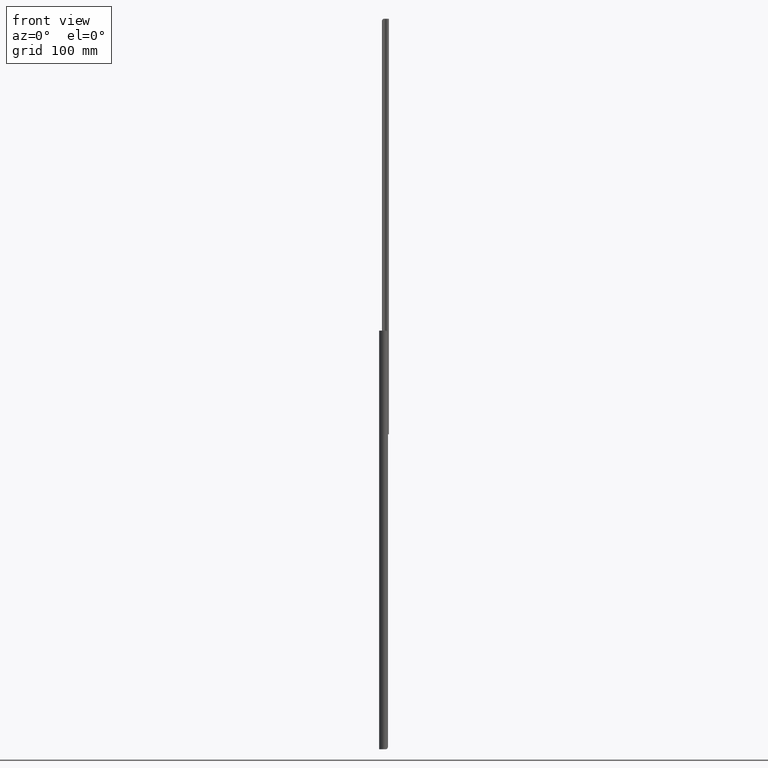
[diagram: clean part render]
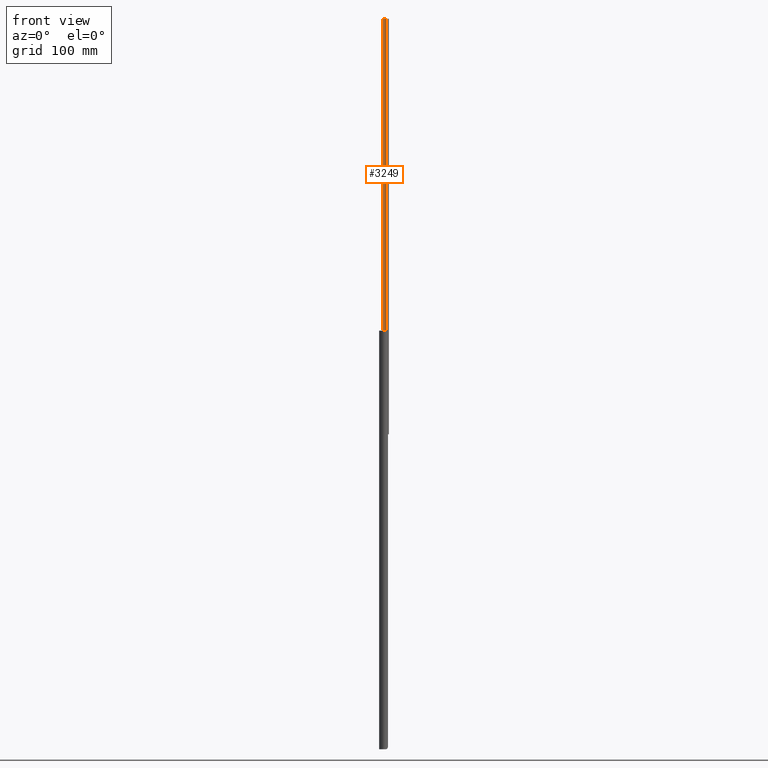
[diagram: same view with one face highlighted and labeled with its STEP entity id]
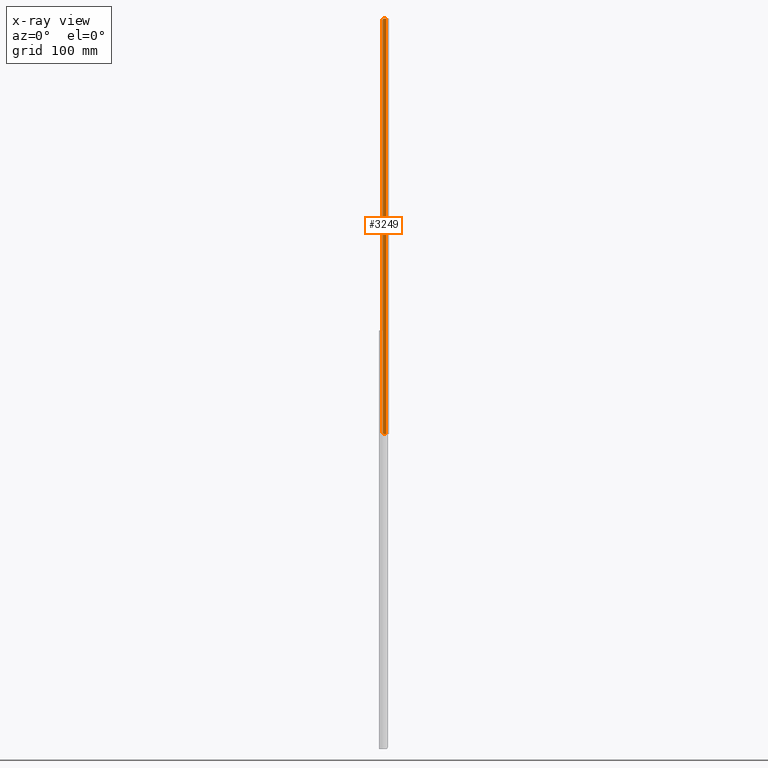
[diagram: x-ray of the same camera — body ghosted, the highlighted face saturated]
A machine part, front view. The second image highlights one B-rep face of the part: STEP entity #3249.
The next image is the same camera in x-ray: the body ghosted, the highlighted face saturated — about 0% of this face is hidden behind the body in this view.
In plain terms, the highlighted cylindrical surface (edge-blend (fillet) strip) has radius 2.38 mm, axis along (0, 0, 1).
Its self-contained STEP definition (entity closure, byte-faithful):
#3 = VERTEX_POINT ( 'NONE', #4042 ) ;
#158 = CARTESIAN_POINT ( 'NONE',  ( -6.038003439892630553, -12.09919011368893038, -0.9131091897948140357 ) ) ;
#368 = VECTOR ( 'NONE', #1017, 1000.000000000000000 ) ;
#426 = CARTESIAN_POINT ( 'NONE',  ( -5.294079358902234134, -11.52586267838252354, -403.2243635600140692 ) ) ;
#500 = CARTESIAN_POINT ( 'NONE',  ( -2.692068106155648177, -11.87076454733029429, 0.0000000000000000000 ) ) ;
#513 = CARTESIAN_POINT ( 'NONE',  ( -5.879618029457557071, -11.93037643469323505, -402.7434980978388239 ) ) ;
#592 = DIRECTION ( 'NONE',  ( -0.0000000000000000000, -0.0000000000000000000, -1.000000000000000000 ) ) ;
#738 = ORIENTED_EDGE ( 'NONE', *, *, #2088, .F. ) ;
#784 = CARTESIAN_POINT ( 'NONE',  ( -6.038003439892630553, -12.09919011368893038, -0.9131091897948140357 ) ) ;
#832 = VERTEX_POINT ( 'NONE', #784 ) ;
#886 = CARTESIAN_POINT ( 'NONE',  ( -5.690153087680392296, -11.75072672325786449, -0.4186476446296458764 ) ) ;
#920 = EDGE_CURVE ( 'NONE', #3878, #4159, #1647, .T. ) ;
#1017 = DIRECTION ( 'NONE',  ( 0.0000000000000000000, 0.0000000000000000000, 1.000000000000000000 ) ) ;
#1134 = CYLINDRICAL_SURFACE ( 'NONE', #4318, 2.379999999999999449 ) ;
#1159 = DIRECTION ( 'NONE',  ( 0.0000000000000000000, 0.0000000000000000000, 1.000000000000000000 ) ) ;
#1295 = DIRECTION ( 'NONE',  ( -0.0000000000000000000, -0.0000000000000000000, -1.000000000000000000 ) ) ;
#1359 = CARTESIAN_POINT ( 'NONE',  ( -4.826038984223906425, -11.35467166644018100, -0.02217273312901113166 ) ) ;
#1383 = CARTESIAN_POINT ( 'NONE',  ( -2.692068106155648177, -11.87076454733029429, -403.4000000000000341 ) ) ;
#1445 = DIRECTION ( 'NONE',  ( 0.0000000000000000000, 0.0000000000000000000, 1.000000000000000000 ) ) ;
#1476 = CARTESIAN_POINT ( 'NONE',  ( -4.249999999999886313, -13.66999999999971926, -403.4000000000000341 ) ) ;
#1518 = VERTEX_POINT ( 'NONE', #500 ) ;
#1588 = CARTESIAN_POINT ( 'NONE',  ( -5.557931754715531802, -11.67582320577004396, -403.0622290901185920 ) ) ;
#1647 = B_SPLINE_CURVE_WITH_KNOTS ( 'NONE', 3,
 ( #2320, #3964, #513, #3879, #1588, #426, #3614, #2077, #3858, #1701 ),
 .UNSPECIFIED., .F., .F.,
 ( 4, 2, 2, 2, 4 ),
 ( 0.0000000000000000000, 0.0005155307284648554325, 0.001031061456929710865, 0.001546592185394566298, 0.002062122913859421730 ),
 .UNSPECIFIED. ) ;
#1654 = ORIENTED_EDGE ( 'NONE', *, *, #2276, .T. ) ;
#1668 = CARTESIAN_POINT ( 'NONE',  ( -5.893307358288281783, -11.93448711945504570, -0.6436133570171447271 ) ) ;
#1701 = CARTESIAN_POINT ( 'NONE',  ( -4.486376115367785467, -11.30176725550783168, -403.4000000000000341 ) ) ;
#1801 = EDGE_LOOP ( 'NONE', ( #2222, #3960, #4710, #1654, #738, #2982 ) ) ;
#1855 = DIRECTION ( 'NONE',  ( 1.000000000000000000, 0.0000000000000000000, 0.0000000000000000000 ) ) ;
#1917 = CARTESIAN_POINT ( 'NONE',  ( -4.249999999999886313, -13.66999999999971926, -403.4000000000000341 ) ) ;
#1995 = CARTESIAN_POINT ( 'NONE',  ( -6.038003439892630553, -12.09919011368893038, -402.4868908102054093 ) ) ;
#2050 = CIRCLE ( 'NONE', #3982, 2.379999999999999449 ) ;
#2068 = CARTESIAN_POINT ( 'NONE',  ( -4.486376115367785467, -11.30176725550783168, 0.0000000000000000000 ) ) ;
#2071 = AXIS2_PLACEMENT_3D ( 'NONE', #1476, #592, #1855 ) ;
#2077 = CARTESIAN_POINT ( 'NONE',  ( -4.828560898864515671, -11.35542010202821928, -403.3772240683281893 ) ) ;
#2088 = EDGE_CURVE ( 'NONE', #3418, #1518, #2050, .T. ) ;
#2222 = ORIENTED_EDGE ( 'NONE', *, *, #4980, .F. ) ;
#2276 = EDGE_CURVE ( 'NONE', #3, #1518, #4835, .T. ) ;
#2320 = CARTESIAN_POINT ( 'NONE',  ( -6.038003439892630553, -12.09919011368893038, -402.4868908102054093 ) ) ;
#2470 = CARTESIAN_POINT ( 'NONE',  ( -4.659778218245988590, -11.31907472478858701, 2.258754526011468290E-17 ) ) ;
#2717 = DIRECTION ( 'NONE',  ( 1.000000000000000000, 0.0000000000000000000, 0.0000000000000000000 ) ) ;
#2784 = CARTESIAN_POINT ( 'NONE',  ( -4.486376115367785467, -11.30176725550783168, 0.0000000000000000000 ) ) ;
#2926 = CARTESIAN_POINT ( 'NONE',  ( -6.038003439892630553, -12.09919011368893038, -403.4000000000000341 ) ) ;
#2982 = ORIENTED_EDGE ( 'NONE', *, *, #3962, .T. ) ;
#3249 = ADVANCED_FACE ( 'NONE', ( #4605 ), #1134, .F. ) ;
#3305 = LINE ( 'NONE', #2926, #4808 ) ;
#3418 = VERTEX_POINT ( 'NONE', #2784 ) ;
#3607 = CARTESIAN_POINT ( 'NONE',  ( -5.291765094037876871, -11.52467060908166907, -0.1744017992316781174 ) ) ;
#3614 = CARTESIAN_POINT ( 'NONE',  ( -5.144586466696213556, -11.45827491052938107, -403.2899586034668005 ) ) ;
#3858 = CARTESIAN_POINT ( 'NONE',  ( -4.660317868445383205, -11.31912858791419829, -403.4000000000000341 ) ) ;
#3878 = VERTEX_POINT ( 'NONE', #1995 ) ;
#3879 = CARTESIAN_POINT ( 'NONE',  ( -5.676515971860145449, -11.76028869906160956, -402.9635151293271633 ) ) ;
#3960 = ORIENTED_EDGE ( 'NONE', *, *, #920, .T. ) ;
#3962 = EDGE_CURVE ( 'NONE', #3418, #832, #4313, .T. ) ;
#3964 = CARTESIAN_POINT ( 'NONE',  ( -5.965511569877949505, -12.01667490030755125, -402.6219066078869560 ) ) ;
#3982 = AXIS2_PLACEMENT_3D ( 'NONE', #4745, #1295, #4720 ) ;
#4042 = CARTESIAN_POINT ( 'NONE',  ( -2.692068106155648177, -11.87076454733029429, -403.4000000000000341 ) ) ;
#4159 = VERTEX_POINT ( 'NONE', #4181 ) ;
#4181 = CARTESIAN_POINT ( 'NONE',  ( -4.486376115367785467, -11.30176725550783168, -403.4000000000000341 ) ) ;
#4248 = CIRCLE ( 'NONE', #2071, 2.379999999999999449 ) ;
#4313 = B_SPLINE_CURVE_WITH_KNOTS ( 'NONE', 3,
 ( #2068, #2470, #1359, #4335, #3607, #886, #1668, #158 ),
 .UNSPECIFIED., .F., .F.,
 ( 4, 2, 2, 4 ),
 ( 0.0000000000000000000, 0.0005143830908129044897, 0.001028766181625808979, 0.002057532363251617525 ),
 .UNSPECIFIED. ) ;
#4318 = AXIS2_PLACEMENT_3D ( 'NONE', #1917, #1159, #2717 ) ;
#4335 = CARTESIAN_POINT ( 'NONE',  ( -5.145257999076717326, -11.45842153233948757, -0.1101341799367574342 ) ) ;
#4550 = EDGE_CURVE ( 'NONE', #4159, #3, #4248, .T. ) ;
#4605 = FACE_OUTER_BOUND ( 'NONE', #1801, .T. ) ;
#4710 = ORIENTED_EDGE ( 'NONE', *, *, #4550, .T. ) ;
#4720 = DIRECTION ( 'NONE',  ( 1.000000000000000000, 0.0000000000000000000, 0.0000000000000000000 ) ) ;
#4745 = CARTESIAN_POINT ( 'NONE',  ( -4.249999999999886313, -13.66999999999971926, 0.0000000000000000000 ) ) ;
#4808 = VECTOR ( 'NONE', #1445, 1000.000000000000000 ) ;
#4835 = LINE ( 'NONE', #1383, #368 ) ;
#4980 = EDGE_CURVE ( 'NONE', #3878, #832, #3305, .T. ) ;